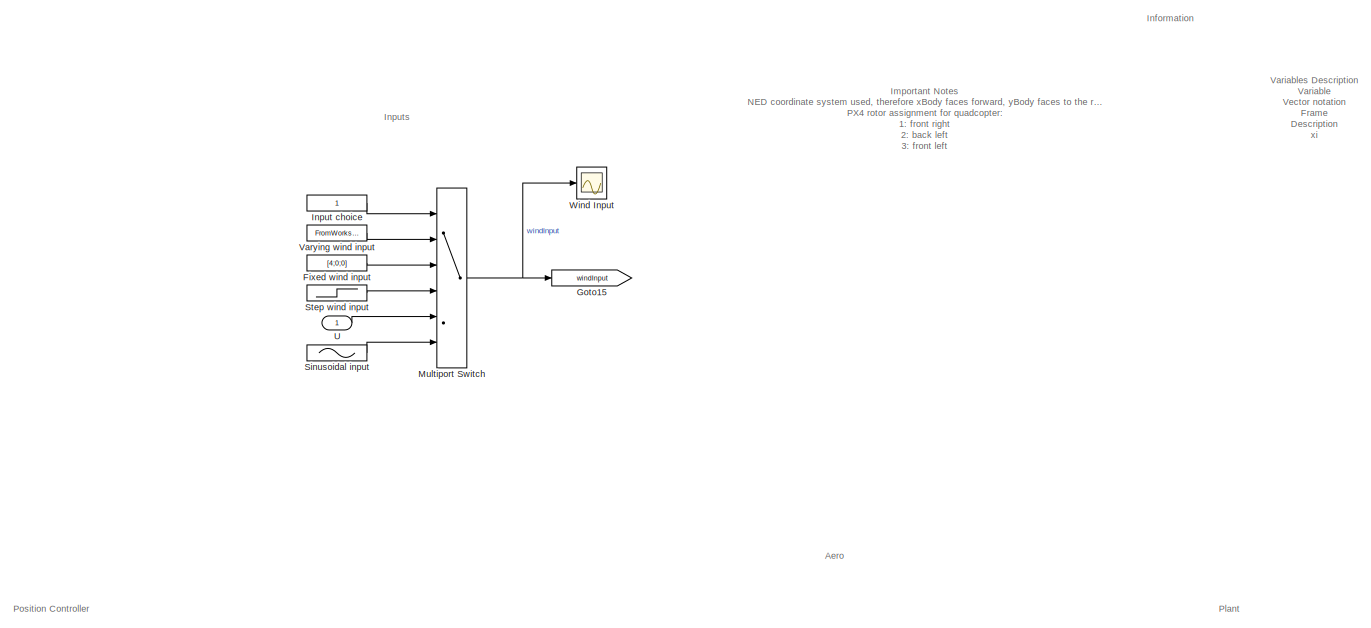
[diagram: root canvas - part 1/5, top center region]
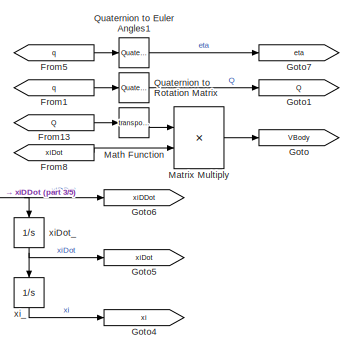
[diagram: root canvas - part 2/5, middle right region]
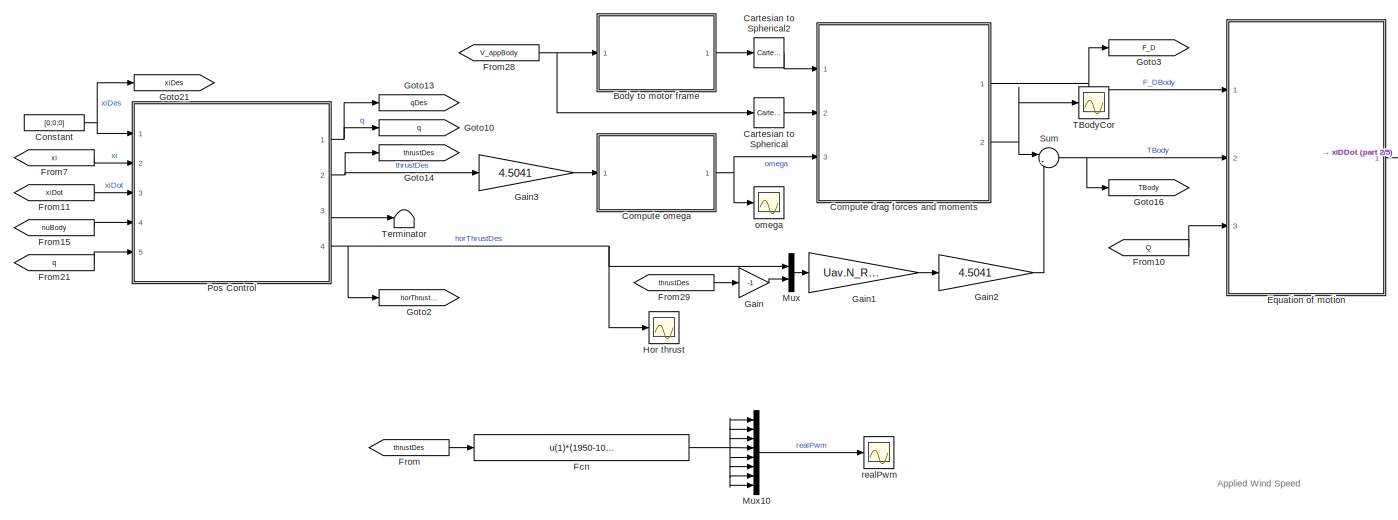
[diagram: root canvas - part 3/5, full width, middle band]
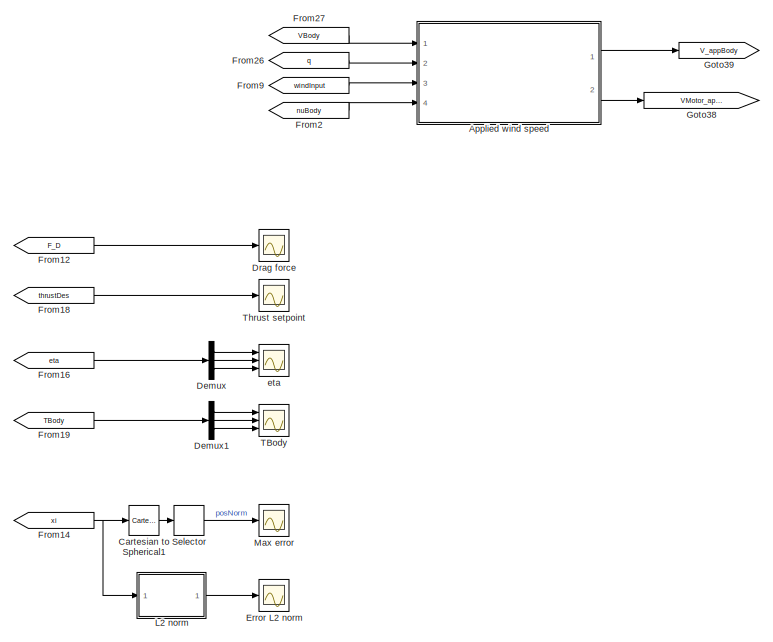
[diagram: root canvas - part 4/5, bottom right region]
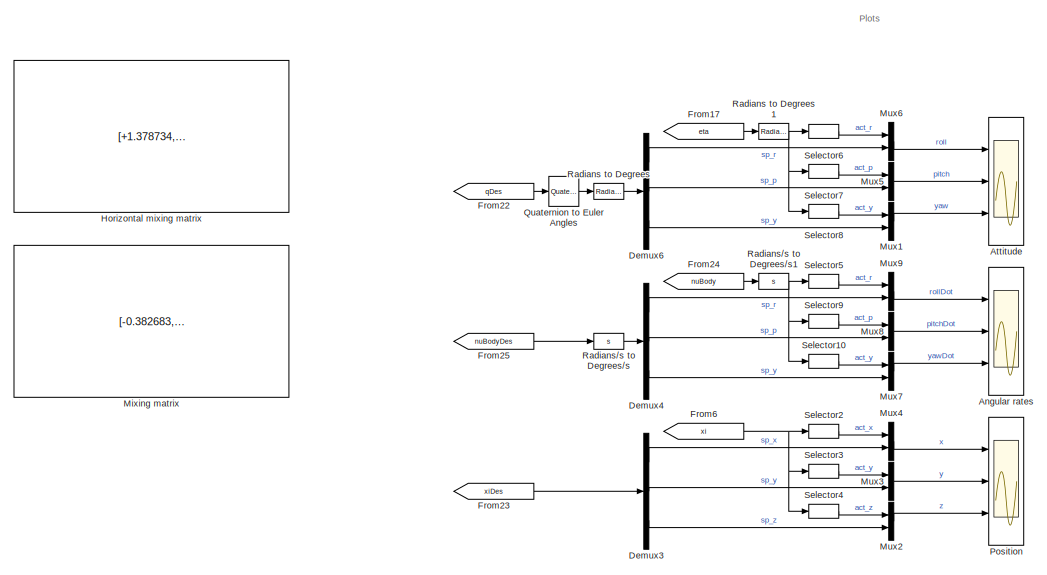
[diagram: root canvas - part 5/5, bottom left region]
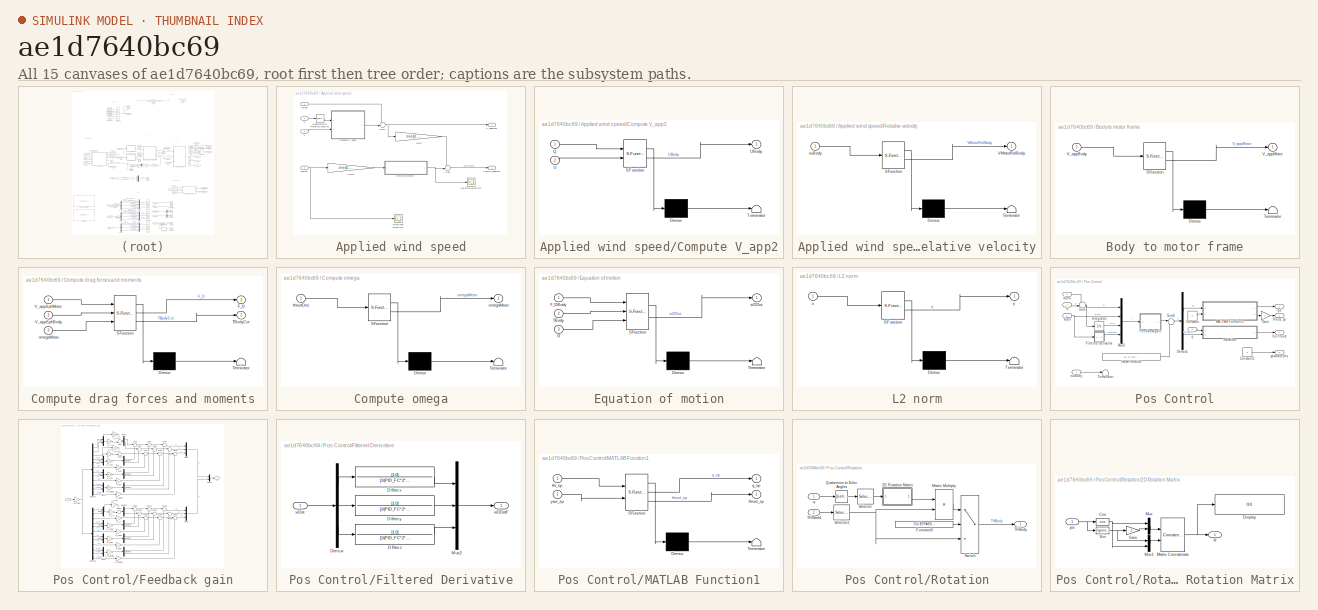
[diagram: thumbnail index - all 15 canvases of the model, root first then tree order]
MODEL slx_ae1d7640bc69
KIND model
CONFIG AbsTol = auto
CONFIG EnableMultiTasking = on
CONFIG FixedStep = auto
CONFIG MaxStep = Simulation.TS_MAX
CONFIG MinStep = auto
CONFIG PreLoadFcn = % InitializeParameters;
CONFIG RelTol = 1e-3
CONFIG SampleTimeConstraint = Unconstrained
CONFIG SolverName = VariableStepAuto
CONFIG StartTime = 0.0
CONFIG StopTime = Simulation.T_END
BLOCK [Scope] Angular rates
  Floating = off
  NumInputPorts = 3
  Ports = [3]
  ScopeSpecificationString = Simulink.scopes.TimeScopeBlockCfg('CurrentConfiguration', extmgr.ConfigurationSet(extmgr.Configuration('Core','General UI',true),extmgr.Configuration('Core','Source UI',true),extmgr.Configuration('Sources','WiredSimulink',true,'DataLoggingVariableName','ScopeData1'),extmgr.Configuration('Visuals','Time Domain',true,'SerializedDisplays',{struct('MinYLimReal','-4.01617','MaxYLimReal','7.15197','YLab...<+2840ch>
BLOCK [SubSystem] Applied wind speed
  Ports = [4, 2]
  RequestExecContextInheritance = off
BLOCK [SubSystem] Applied wind speed/Compute V_app2
  ErrorFcn = Stateflow.Translate.translate
  PermitHierarchicalResolution = ExplicitOnly
  Ports = [2, 1]
  RequestExecContextInheritance = off
  SFBlockType = MATLAB Function
  TreatAsAtomicUnit = on
BLOCK [Demux] Applied wind speed/Compute V_app2/ Demux 
  Outputs = 1
  Ports = [1, 1]
BLOCK [S-Function] Applied wind speed/Compute V_app2/ SFunction 
  EnableBusSupport = on
  FunctionName = sf_sfun
  PortCounts = [2 2]
  Ports = [2, 2]
  SFcnIsStateOwnerBlock = off
  SFunctionDeploymentMode = off
  Tag = Stateflow S-Function 5
BLOCK [Terminator] Applied wind speed/Compute V_app2/ Terminator 
BLOCK [Inport] Applied wind speed/Compute V_app2/Q
BLOCK [Inport] Applied wind speed/Compute V_app2/U
  Port = 2
BLOCK [Outport] Applied wind speed/Compute V_app2/UBody
  VectorParamsAs1DForOutWhenUnconnected = off
BLOCK [Gain] Applied wind speed/Gain
  Gain = ones(1,Uav.N_ROTORS)
  Multiplication = Matrix(u*K)
BLOCK [Gain] Applied wind speed/Gain1
  Gain = ones(1,Uav.N_ROTORS)
  Multiplication = Matrix(u*K)
BLOCK [Reference] Applied wind speed/Quaternion to Rotation Matrix1  REF=QuaternionLibrary/Quaternion
to Rotation Matrix
  Ports = [1, 1]
  SourceBlock = QuaternionLibrary/Quaternion\nto Rotation Matrix
BLOCK [Scope] Applied wind speed/Relative velocities
  Floating = off
  NumInputPorts = 1
  Ports = [1]
  ScopeSpecificationString = Simulink.scopes.TimeScopeBlockCfg('CurrentConfiguration', extmgr.ConfigurationSet(extmgr.Configuration('Core','General UI',true),extmgr.Configuration('Core','Source UI',true),extmgr.Configuration('Sources','WiredSimulink',true,'DataLoggingVariableName','ScopeData7'),extmgr.Configuration('Visuals','Time Domain',true,'SerializedDisplays',{struct('MinYLimReal','-0.10082','MaxYLimReal','0.10082','YLab...<+1971ch>
BLOCK [SubSystem] Applied wind speed/Relative velocity
  ErrorFcn = Stateflow.Translate.translate
  PermitHierarchicalResolution = ExplicitOnly
  Ports = [1, 1]
  RequestExecContextInheritance = off
  SFBlockType = MATLAB Function
  TreatAsAtomicUnit = on
BLOCK [Demux] Applied wind speed/Relative velocity/ Demux 
  Outputs = 1
  Ports = [1, 1]
BLOCK [S-Function] Applied wind speed/Relative velocity/ SFunction 
  EnableBusSupport = on
  FunctionName = sf_sfun
  Parameters = Uav
  PortCounts = [1 2]
  Ports = [1, 2]
  SFcnIsStateOwnerBlock = off
  SFunctionDeploymentMode = off
  Tag = Stateflow S-Function 4
BLOCK [Terminator] Applied wind speed/Relative velocity/ Terminator 
BLOCK [Outport] Applied wind speed/Relative velocity/VMotorRelBody
  VectorParamsAs1DForOutWhenUnconnected = off
BLOCK [Inport] Applied wind speed/Relative velocity/nuBody
BLOCK [Scope] Applied wind speed/Rotational velocities
  Floating = off
  NumInputPorts = 1
  Ports = [1]
  ScopeSpecificationString = Simulink.scopes.TimeScopeBlockCfg('CurrentConfiguration', extmgr.ConfigurationSet(extmgr.Configuration('Core','General UI',true),extmgr.Configuration('Core','Source UI',true),extmgr.Configuration('Sources','WiredSimulink',true,'DataLoggingVariableName','ScopeData8'),extmgr.Configuration('Visuals','Time Domain',true,'SerializedDisplays',{struct('MinYLimReal','-0.22625','MaxYLimReal','0.41313','YLab...<+1461ch>
BLOCK [Sum] Applied wind speed/Sum
  Inputs = ++|
  Ports = [2, 1]
BLOCK [Sum] Applied wind speed/Sum1
  Inputs = ++|
  Ports = [2, 1]
BLOCK [Inport] Applied wind speed/U
  Port = 3
  Unit = m/s
BLOCK [Inport] Applied wind speed/VBody
  Unit = m/s
BLOCK [Outport] Applied wind speed/VMotor_appBody
  Port = 2
  PortDimensions = [3,Uav.N_ROTORS]
  Unit = m/s
  VectorParamsAs1DForOutWhenUnconnected = off
BLOCK [Outport] Applied wind speed/V_appBody
  Unit = m/s
  VectorParamsAs1DForOutWhenUnconnected = off
BLOCK [Inport] Applied wind speed/nuBody
  Port = 4
  Unit = rad/s
BLOCK [Inport] Applied wind speed/q
  Port = 2
BLOCK [Scope] Attitude
  Floating = off
  NumInputPorts = 3
  Ports = [3]
  ScopeSpecificationString = Simulink.scopes.TimeScopeBlockCfg('CurrentConfiguration', extmgr.ConfigurationSet(extmgr.Configuration('Core','General UI',true),extmgr.Configuration('Core','Source UI',true),extmgr.Configuration('Sources','WiredSimulink',true,'DataLoggingVariableName','ScopeData2'),extmgr.Configuration('Visuals','Time Domain',true,'SerializedDisplays',{struct('MinYLimReal','-1.00000','MaxYLimReal','1.00000','YLab...<+3144ch>
BLOCK [SubSystem] Body to motor frame
  ErrorFcn = Stateflow.Translate.translate
  PermitHierarchicalResolution = ExplicitOnly
  Ports = [1, 1]
  RequestExecContextInheritance = off
  SFBlockType = MATLAB Function
  TreatAsAtomicUnit = on
BLOCK [Demux] Body to motor frame/ Demux 
  Outputs = 1
  Ports = [1, 1]
BLOCK [S-Function] Body to motor frame/ SFunction 
  EnableBusSupport = on
  FunctionName = sf_sfun
  Parameters = Uav
  PortCounts = [1 2]
  Ports = [1, 2]
  SFcnIsStateOwnerBlock = off
  SFunctionDeploymentMode = off
  Tag = Stateflow S-Function 1
BLOCK [Terminator] Body to motor frame/ Terminator 
BLOCK [Inport] Body to motor frame/V_appBody
BLOCK [Outport] Body to motor frame/V_appMotor
  VectorParamsAs1DForOutWhenUnconnected = off
BLOCK [Reference] Cartesian to Spherical  REF=QuaternionLibrary/Cartesian
to Spherical
  Ports = [1, 1]
  SourceBlock = QuaternionLibrary/Cartesian\nto Spherical
BLOCK [Reference] Cartesian to Spherical1  REF=QuaternionLibrary/Cartesian
to Spherical
  Ports = [1, 1]
  SourceBlock = QuaternionLibrary/Cartesian\nto Spherical
BLOCK [Reference] Cartesian to Spherical2  REF=QuaternionLibrary/Cartesian
to Spherical
  Ports = [1, 1]
  SourceBlock = QuaternionLibrary/Cartesian\nto Spherical
BLOCK [SubSystem] Compute drag forces and moments
  ErrorFcn = Stateflow.Translate.translate
  PermitHierarchicalResolution = ExplicitOnly
  Ports = [3, 2]
  RequestExecContextInheritance = off
  SFBlockType = MATLAB Function
  TreatAsAtomicUnit = on
BLOCK [Demux] Compute drag forces and moments/ Demux 
  Outputs = 1
  Ports = [1, 1]
BLOCK [S-Function] Compute drag forces and moments/ SFunction 
  EnableBusSupport = on
  FunctionName = sf_sfun
  Parameters = Aero,Uav
  PortCounts = [3 3]
  Ports = [3, 3]
  SFcnIsStateOwnerBlock = off
  SFunctionDeploymentMode = off
  Tag = Stateflow S-Function 9
BLOCK [Terminator] Compute drag forces and moments/ Terminator 
BLOCK [Outport] Compute drag forces and moments/F_D
  VectorParamsAs1DForOutWhenUnconnected = off
BLOCK [Outport] Compute drag forces and moments/TBodyCor
  Port = 2
  VectorParamsAs1DForOutWhenUnconnected = off
BLOCK [Inport] Compute drag forces and moments/V_appSphBody
  Port = 2
BLOCK [Inport] Compute drag forces and moments/V_appSphMotor
BLOCK [Inport] Compute drag forces and moments/omegaMean
  Port = 3
BLOCK [SubSystem] Compute omega
  ErrorFcn = Stateflow.Translate.translate
  PermitHierarchicalResolution = ExplicitOnly
  Ports = [1, 1]
  RequestExecContextInheritance = off
  SFBlockType = MATLAB Function
  TreatAsAtomicUnit = on
BLOCK [Demux] Compute omega/ Demux 
  Outputs = 1
  Ports = [1, 1]
BLOCK [S-Function] Compute omega/ SFunction 
  EnableBusSupport = on
  FunctionName = sf_sfun
  Parameters = Aero,Uav
  PortCounts = [1 2]
  Ports = [1, 2]
  SFcnIsStateOwnerBlock = off
  SFunctionDeploymentMode = off
  Tag = Stateflow S-Function 2
BLOCK [Terminator] Compute omega/ Terminator 
BLOCK [Outport] Compute omega/omegaMean
  VectorParamsAs1DForOutWhenUnconnected = off
BLOCK [Inport] Compute omega/thrustDes
BLOCK [Constant] Constant
  Value = [0;0;0]
BLOCK [Demux] Demux
  Outputs = 3
  Ports = [1, 3]
BLOCK [Demux] Demux1
  Outputs = 3
  Ports = [1, 3]
BLOCK [Demux] Demux3
  Outputs = 3
  Ports = [1, 3]
BLOCK [Demux] Demux4
  Outputs = 3
  Ports = [1, 3]
BLOCK [Demux] Demux6
  Outputs = 3
  Ports = [1, 3]
BLOCK [Scope] Drag force
  Floating = off
  NumInputPorts = 1
  Ports = [1]
  ScopeSpecificationString = Simulink.scopes.TimeScopeBlockCfg('CurrentConfiguration', extmgr.ConfigurationSet(extmgr.Configuration('Core','General UI',true),extmgr.Configuration('Core','Source UI',true),extmgr.Configuration('Sources','WiredSimulink',true,'DataLoggingVariableName','ScopeData3'),extmgr.Configuration('Visuals','Time Domain',true,'SerializedDisplays',{struct('MinYLimReal','-0.87753','MaxYLimReal','0.20159','YLab...<+1461ch>
BLOCK [SubSystem] Equation of motion
  ErrorFcn = Stateflow.Translate.translate
  PermitHierarchicalResolution = ExplicitOnly
  Ports = [3, 1]
  RequestExecContextInheritance = off
  SFBlockType = MATLAB Function
  TreatAsAtomicUnit = on
BLOCK [Demux] Equation of motion/ Demux 
  Outputs = 1
  Ports = [1, 1]
BLOCK [S-Function] Equation of motion/ SFunction 
  EnableBusSupport = on
  FunctionName = sf_sfun
  Parameters = Uav
  PortCounts = [3 2]
  Ports = [3, 2]
  SFcnIsStateOwnerBlock = off
  SFunctionDeploymentMode = off
  Tag = Stateflow S-Function 6
BLOCK [Terminator] Equation of motion/ Terminator 
BLOCK [Inport] Equation of motion/F_DBody
BLOCK [Inport] Equation of motion/R
  Port = 3
BLOCK [Inport] Equation of motion/TBody
  Port = 2
BLOCK [Outport] Equation of motion/xiDDot
  VectorParamsAs1DForOutWhenUnconnected = off
BLOCK [Scope] Error L2 norm
  Floating = off
  NumInputPorts = 1
  Ports = [1]
  ScopeSpecificationString = Simulink.scopes.TimeScopeBlockCfg('CurrentConfiguration', extmgr.ConfigurationSet(extmgr.Configuration('Core','General UI',true),extmgr.Configuration('Core','Source UI',true),extmgr.Configuration('Sources','WiredSimulink',true,'DataLoggingVariableName','ScopeData5'),extmgr.Configuration('Visuals','Time Domain',true,'SerializedDisplays',{struct('MinYLimReal','-0.03873','MaxYLimReal','0.34858','YLab...<+1449ch>
BLOCK [Fcn] Fcn
  Expr = u(1)*(1950-1075) + 1075
BLOCK [Constant] Fixed wind input
  Value = [4;0;0]
BLOCK [From] From
  GotoTag = thrustDes
BLOCK [From] From1
  GotoTag = q
BLOCK [From] From10
  GotoTag = Q
BLOCK [From] From11
  GotoTag = xiDot
BLOCK [From] From12
  GotoTag = F_D
BLOCK [From] From13
  GotoTag = Q
BLOCK [From] From14
  GotoTag = xi
BLOCK [From] From15
  GotoTag = nuBody
BLOCK [From] From16
  GotoTag = eta
BLOCK [From] From17
  GotoTag = eta
BLOCK [From] From18
  GotoTag = thrustDes
BLOCK [From] From19
  GotoTag = TBody
BLOCK [From] From2
  GotoTag = nuBody
BLOCK [From] From21
  GotoTag = q
BLOCK [From] From22
  GotoTag = qDes
BLOCK [From] From23
  GotoTag = xiDes
BLOCK [From] From24
  GotoTag = nuBody
BLOCK [From] From25
  GotoTag = nuBodyDes
BLOCK [From] From26
  GotoTag = q
BLOCK [From] From27
  GotoTag = VBody
BLOCK [From] From28
  GotoTag = V_appBody
BLOCK [From] From29
  GotoTag = thrustDes
BLOCK [From] From5
  GotoTag = q
BLOCK [From] From6
  GotoTag = xi
BLOCK [From] From7
  GotoTag = xi
BLOCK [From] From8
  GotoTag = xiDot
BLOCK [From] From9
  GotoTag = windInput
BLOCK [Gain] Gain
  Gain = -1
BLOCK [Gain] Gain1
  Gain = Uav.N_ROTORS
BLOCK [Gain] Gain2
  Gain = 4.5041
BLOCK [Gain] Gain3
  Gain = 4.5041
BLOCK [Goto] Goto
  GotoTag = VBody
BLOCK [Goto] Goto1
  GotoTag = Q
BLOCK [Goto] Goto10
  GotoTag = q
BLOCK [Goto] Goto13
  GotoTag = qDes
BLOCK [Goto] Goto14
  GotoTag = thrustDes
BLOCK [Goto] Goto15
  GotoTag = windInput
BLOCK [Goto] Goto16
  GotoTag = TBody
BLOCK [Goto] Goto2
  GotoTag = horThrustDes
BLOCK [Goto] Goto21
  GotoTag = xiDes
BLOCK [Goto] Goto3
  GotoTag = F_D
BLOCK [Goto] Goto38
  GotoTag = VMotor_appBody
BLOCK [Goto] Goto39
  GotoTag = V_appBody
BLOCK [Goto] Goto4
  GotoTag = xi
BLOCK [Goto] Goto5
  GotoTag = xiDot
BLOCK [Goto] Goto6
  GotoTag = xiDDot
BLOCK [Goto] Goto7
  GotoTag = eta
BLOCK [Scope] Hor thrust
  Floating = off
  NumInputPorts = 1
  Ports = [1]
  ScopeSpecificationString = Simulink.scopes.TimeScopeBlockCfg('CurrentConfiguration', extmgr.ConfigurationSet(extmgr.Configuration('Core','General UI',true),extmgr.Configuration('Core','Source UI',true),extmgr.Configuration('Sources','WiredSimulink',true,'DataLoggingVariableName','ScopeData1'),extmgr.Configuration('Visuals','Time Domain',true,'SerializedDisplays',{struct('MinYLimReal','-1.00000','MaxYLimReal','1.00000','YLab...<+1464ch>
BLOCK [Constant] Horizontal mixing matrix
  Commented = on
  Value = [+1.378734, -3.328559;\n -1.378734, +3.328559;\n -3.328559, +1.378734;\n -1.378734, -3.328559;\n +1.378734, +3.328559;\n +3.328559, -1.378734;\n -3.328559, -1.378734;\n +3.328559, +1.378734]
BLOCK [Constant] Input choice
BLOCK [SubSystem] L2 norm
  ErrorFcn = Stateflow.Translate.translate
  PermitHierarchicalResolution = ExplicitOnly
  Ports = [1, 1]
  RequestExecContextInheritance = off
  SFBlockType = MATLAB Function
  TreatAsAtomicUnit = on
BLOCK [Demux] L2 norm/ Demux 
  Outputs = 1
  Ports = [1, 1]
BLOCK [S-Function] L2 norm/ SFunction 
  EnableBusSupport = on
  FunctionName = sf_sfun
  PortCounts = [1 2]
  Ports = [1, 2]
  SFcnIsStateOwnerBlock = off
  SFunctionDeploymentMode = off
  Tag = Stateflow S-Function 15
BLOCK [Terminator] L2 norm/ Terminator 
BLOCK [Inport] L2 norm/u
BLOCK [Outport] L2 norm/y
  VectorParamsAs1DForOutWhenUnconnected = off
BLOCK [Math] Math Function
  Operator = transpose
  Ports = [1, 1]
  SignedPower = on
BLOCK [Product] Matrix Multiply
  Multiplication = Matrix(*)
  Ports = [2, 1]
BLOCK [Scope] Max error
  Floating = off
  NumInputPorts = 1
  Ports = [1]
  ScopeSpecificationString = Simulink.scopes.TimeScopeBlockCfg('CurrentConfiguration', extmgr.ConfigurationSet(extmgr.Configuration('Core','General UI',true),extmgr.Configuration('Core','Source UI',true),extmgr.Configuration('Sources','WiredSimulink',true,'DataLoggingVariableName','ScopeData4'),extmgr.Configuration('Visuals','Time Domain',true,'SerializedDisplays',{struct('MinYLimReal','-0.000001','MaxYLimReal','0.000011','YL...<+1447ch>
BLOCK [Constant] Mixing matrix
  Commented = on
  Value = [-0.382683,  0.923880,  1.000000,  1.000000 ;\n  0.382683, -0.923880,  1.000000,  1.000000 ;\n -0.923880,  0.382683, -1.000000,  1.000000 ;\n -0.382683, -0.923880, -1.000000,  1.000000 ;\n  0.382683,  0.923880, -1.000000,  1.000000 ;\n  0.923880, -0.382683, -1.000000,  1.000000 ;\n  0.923880,  0.382683,  1.000000,  1.000000 ;\n -0.923880, -0.382683,  1.000000,  1.000000 ]
BLOCK [MultiPortSwitch] Multiport Switch
  InputSameDT = off
  Inputs = 5
  Ports = [6, 1]
  SaturateOnIntegerOverflow = off
BLOCK [Mux] Mux
  DisplayOption = bar
  Inputs = 2
  Ports = [2, 1]
BLOCK [Mux] Mux1
  DisplayOption = bar
  Inputs = 2
  Ports = [2, 1]
BLOCK [Mux] Mux10
  DisplayOption = bar
  Inputs = 8
  Ports = [8, 1]
BLOCK [Mux] Mux2
  DisplayOption = bar
  Inputs = 2
  Ports = [2, 1]
BLOCK [Mux] Mux3
  DisplayOption = bar
  Inputs = 2
  Ports = [2, 1]
BLOCK [Mux] Mux4
  DisplayOption = bar
  Inputs = 2
  Ports = [2, 1]
BLOCK [Mux] Mux5
  DisplayOption = bar
  Inputs = 2
  Ports = [2, 1]
BLOCK [Mux] Mux6
  DisplayOption = bar
  Inputs = 2
  Ports = [2, 1]
BLOCK [Mux] Mux7
  DisplayOption = bar
  Inputs = 2
  Ports = [2, 1]
BLOCK [Mux] Mux8
  DisplayOption = bar
  Inputs = 2
  Ports = [2, 1]
BLOCK [Mux] Mux9
  DisplayOption = bar
  Inputs = 2
  Ports = [2, 1]
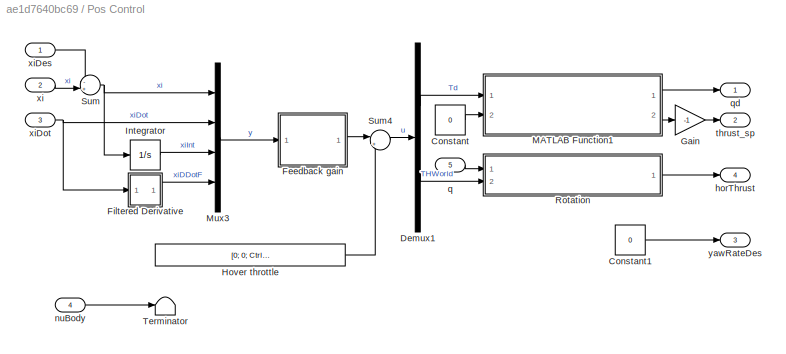
BLOCK [SubSystem] Pos Control
  Ports = [5, 4]
  RequestExecContextInheritance = off
BLOCK [Constant] Pos Control/Constant
  Value = 0
BLOCK [Constant] Pos Control/Constant1
  Value = 0
BLOCK [Demux] Pos Control/Demux1
  Outputs = 2
  Ports = [1, 2]
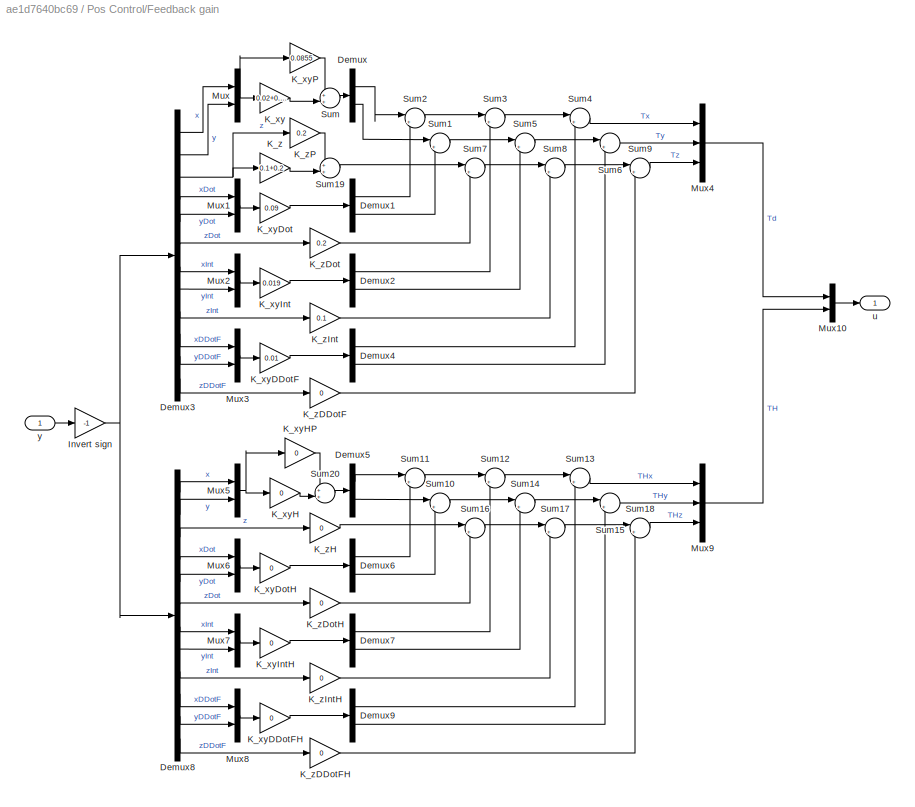
BLOCK [SubSystem] Pos Control/Feedback gain
  Ports = [1, 1]
  RequestExecContextInheritance = off
BLOCK [Demux] Pos Control/Feedback gain/Demux
  Outputs = 2
  Ports = [1, 2]
BLOCK [Demux] Pos Control/Feedback gain/Demux1
  Outputs = 2
  Ports = [1, 2]
BLOCK [Demux] Pos Control/Feedback gain/Demux2
  Outputs = 2
  Ports = [1, 2]
BLOCK [Demux] Pos Control/Feedback gain/Demux3
  Outputs = 12
  Ports = [1, 12]
BLOCK [Demux] Pos Control/Feedback gain/Demux4
  Outputs = 2
  Ports = [1, 2]
BLOCK [Demux] Pos Control/Feedback gain/Demux5
  Outputs = 2
  Ports = [1, 2]
BLOCK [Demux] Pos Control/Feedback gain/Demux6
  Outputs = 2
  Ports = [1, 2]
BLOCK [Demux] Pos Control/Feedback gain/Demux7
  Outputs = 2
  Ports = [1, 2]
BLOCK [Demux] Pos Control/Feedback gain/Demux8
  Outputs = 12
  Ports = [1, 12]
BLOCK [Demux] Pos Control/Feedback gain/Demux9
  Outputs = 2
  Ports = [1, 2]
BLOCK [Gain] Pos Control/Feedback gain/Invert sign
  Gain = -1
BLOCK [Gain] Pos Control/Feedback gain/K_xy
  Gain = 0.02+0.0855
BLOCK [Gain] Pos Control/Feedback gain/K_xyDDotF
  Gain = 0.01
BLOCK [Gain] Pos Control/Feedback gain/K_xyDDotFH
  Gain = 0
BLOCK [Gain] Pos Control/Feedback gain/K_xyDot
  Gain = 0.09
BLOCK [Gain] Pos Control/Feedback gain/K_xyDotH
  Gain = 0
BLOCK [Gain] Pos Control/Feedback gain/K_xyH
  Gain = 0
BLOCK [Gain] Pos Control/Feedback gain/K_xyHP
  Commented = on
  Gain = 0
BLOCK [Gain] Pos Control/Feedback gain/K_xyInt
  Gain = 0.019
BLOCK [Gain] Pos Control/Feedback gain/K_xyIntH
  Gain = 0
BLOCK [Gain] Pos Control/Feedback gain/K_xyP
  Commented = on
  Gain = 0.0855
BLOCK [Gain] Pos Control/Feedback gain/K_z
  Gain = 0.1+0.2
BLOCK [Gain] Pos Control/Feedback gain/K_zDDotF
  Gain = 0
BLOCK [Gain] Pos Control/Feedback gain/K_zDDotFH
  Commented = on
  Gain = 0
BLOCK [Gain] Pos Control/Feedback gain/K_zDot
  Gain = 0.2
BLOCK [Gain] Pos Control/Feedback gain/K_zDotH
  Commented = on
  Gain = 0
BLOCK [Gain] Pos Control/Feedback gain/K_zH
  Commented = on
  Gain = 0
BLOCK [Gain] Pos Control/Feedback gain/K_zInt
  Gain = 0.1
BLOCK [Gain] Pos Control/Feedback gain/K_zIntH
  Commented = on
  Gain = 0
BLOCK [Gain] Pos Control/Feedback gain/K_zP
  Commented = on
  Gain = 0.2
BLOCK [Mux] Pos Control/Feedback gain/Mux
  DisplayOption = bar
  Inputs = 2
  Ports = [2, 1]
BLOCK [Mux] Pos Control/Feedback gain/Mux1
  DisplayOption = bar
  Inputs = 2
  Ports = [2, 1]
BLOCK [Mux] Pos Control/Feedback gain/Mux10
  DisplayOption = bar
  Inputs = 2
  Ports = [2, 1]
BLOCK [Mux] Pos Control/Feedback gain/Mux2
  DisplayOption = bar
  Inputs = 2
  Ports = [2, 1]
BLOCK [Mux] Pos Control/Feedback gain/Mux3
  DisplayOption = bar
  Inputs = 2
  Ports = [2, 1]
BLOCK [Mux] Pos Control/Feedback gain/Mux4
  DisplayOption = bar
  Inputs = 3
  Ports = [3, 1]
BLOCK [Mux] Pos Control/Feedback gain/Mux5
  DisplayOption = bar
  Inputs = 2
  Ports = [2, 1]
BLOCK [Mux] Pos Control/Feedback gain/Mux6
  DisplayOption = bar
  Inputs = 2
  Ports = [2, 1]
BLOCK [Mux] Pos Control/Feedback gain/Mux7
  DisplayOption = bar
  Inputs = 2
  Ports = [2, 1]
BLOCK [Mux] Pos Control/Feedback gain/Mux8
  DisplayOption = bar
  Inputs = 2
  Ports = [2, 1]
BLOCK [Mux] Pos Control/Feedback gain/Mux9
  DisplayOption = bar
  Inputs = 3
  Ports = [3, 1]
BLOCK [Sum] Pos Control/Feedback gain/Sum
  Inputs = ++|
  Ports = [2, 1]
BLOCK [Sum] Pos Control/Feedback gain/Sum1
  Inputs = |++
  Ports = [2, 1]
BLOCK [Sum] Pos Control/Feedback gain/Sum10
  Inputs = |++
  Ports = [2, 1]
BLOCK [Sum] Pos Control/Feedback gain/Sum11
  Inputs = |++
  Ports = [2, 1]
BLOCK [Sum] Pos Control/Feedback gain/Sum12
  Inputs = |++
  Ports = [2, 1]
BLOCK [Sum] Pos Control/Feedback gain/Sum13
  Inputs = |++
  Ports = [2, 1]
BLOCK [Sum] Pos Control/Feedback gain/Sum14
  Inputs = |++
  Ports = [2, 1]
BLOCK [Sum] Pos Control/Feedback gain/Sum15
  Inputs = |++
  Ports = [2, 1]
BLOCK [Sum] Pos Control/Feedback gain/Sum16
  Inputs = |++
  Ports = [2, 1]
BLOCK [Sum] Pos Control/Feedback gain/Sum17
  Inputs = |++
  Ports = [2, 1]
BLOCK [Sum] Pos Control/Feedback gain/Sum18
  Inputs = |++
  Ports = [2, 1]
BLOCK [Sum] Pos Control/Feedback gain/Sum19
  Inputs = ++|
  Ports = [2, 1]
BLOCK [Sum] Pos Control/Feedback gain/Sum2
  Inputs = |++
  Ports = [2, 1]
BLOCK [Sum] Pos Control/Feedback gain/Sum20
  Inputs = ++|
  Ports = [2, 1]
BLOCK [Sum] Pos Control/Feedback gain/Sum3
  Inputs = |++
  Ports = [2, 1]
BLOCK [Sum] Pos Control/Feedback gain/Sum4
  Inputs = |++
  Ports = [2, 1]
BLOCK [Sum] Pos Control/Feedback gain/Sum5
  Inputs = |++
  Ports = [2, 1]
BLOCK [Sum] Pos Control/Feedback gain/Sum6
  Inputs = |++
  Ports = [2, 1]
BLOCK [Sum] Pos Control/Feedback gain/Sum7
  Inputs = |++
  Ports = [2, 1]
BLOCK [Sum] Pos Control/Feedback gain/Sum8
  Inputs = |++
  Ports = [2, 1]
BLOCK [Sum] Pos Control/Feedback gain/Sum9
  Inputs = |++
  Ports = [2, 1]
BLOCK [Outport] Pos Control/Feedback gain/u
  VectorParamsAs1DForOutWhenUnconnected = off
BLOCK [Inport] Pos Control/Feedback gain/y
BLOCK [SubSystem] Pos Control/Filtered Derivative
  Ports = [1, 1]
  RequestExecContextInheritance = off
BLOCK [TransferFcn] Pos Control/Filtered Derivative/D filter x
  ContinuousStateAttributes = 'velPID_D_x'
  Denominator = [1/(PID_FC*2*pi) 1]
  Numerator = [1 0]
BLOCK [TransferFcn] Pos Control/Filtered Derivative/D filter y
  ContinuousStateAttributes = 'velPID_D_y'
  Denominator = [1/(PID_FC*2*pi) 1]
  Numerator = [1 0]
BLOCK [TransferFcn] Pos Control/Filtered Derivative/D filter z
  ContinuousStateAttributes = 'velPID_D_z'
  Denominator = [1/(PID_FC*2*pi) 1]
  Numerator = [1 0]
BLOCK [Demux] Pos Control/Filtered Derivative/Demux
  Outputs = 3
  Ports = [1, 3]
BLOCK [Mux] Pos Control/Filtered Derivative/Mux2
  DisplayOption = bar
  Inputs = 3
  Ports = [3, 1]
BLOCK [Outport] Pos Control/Filtered Derivative/xiDDotF
  Unit = m/s^2
  VectorParamsAs1DForOutWhenUnconnected = off
BLOCK [Inport] Pos Control/Filtered Derivative/xiDot
  Unit = m/s
BLOCK [Gain] Pos Control/Gain
  Gain = -1
BLOCK [Constant] Pos Control/Hover throttle
  Value = [0; 0; Ctrl.THROTTLE_HOVER; 0; 0; 0]
BLOCK [Integrator] Pos Control/Integrator
  ContinuousStateAttributes = 'xiInt'
  Ports = [1, 1]
BLOCK [SubSystem] Pos Control/MATLAB Function1
  ErrorFcn = Stateflow.Translate.translate
  PermitHierarchicalResolution = ExplicitOnly
  Ports = [2, 2]
  RequestExecContextInheritance = off
  SFBlockType = MATLAB Function
  TreatAsAtomicUnit = on
BLOCK [Demux] Pos Control/MATLAB Function1/ Demux 
  Outputs = 1
  Ports = [1, 1]
BLOCK [S-Function] Pos Control/MATLAB Function1/ SFunction 
  EnableBusSupport = on
  FunctionName = sf_sfun
  PortCounts = [2 3]
  Ports = [2, 3]
  SFcnIsStateOwnerBlock = off
  SFunctionDeploymentMode = off
  Tag = Stateflow S-Function 3
BLOCK [Terminator] Pos Control/MATLAB Function1/ Terminator 
BLOCK [Outport] Pos Control/MATLAB Function1/q_sp
  VectorParamsAs1DForOutWhenUnconnected = off
BLOCK [Inport] Pos Control/MATLAB Function1/thr_sp
BLOCK [Outport] Pos Control/MATLAB Function1/thrust_sp
  Port = 2
  VectorParamsAs1DForOutWhenUnconnected = off
BLOCK [Inport] Pos Control/MATLAB Function1/yaw_sp
  Port = 2
BLOCK [Mux] Pos Control/Mux3
  DisplayOption = bar
  Ports = [4, 1]
BLOCK [SubSystem] Pos Control/Rotation
  Ports = [2, 1]
  RequestExecContextInheritance = off
BLOCK [SubSystem] Pos Control/Rotation/2D Rotation Matrix
  Ports = [1, 1]
  RequestExecContextInheritance = off
BLOCK [Trigonometry] Pos Control/Rotation/2D Rotation Matrix/Cos
  Operator = cos
  Ports = [1, 1]
BLOCK [Display] Pos Control/Rotation/2D Rotation Matrix/Display
  Decimation = 1
  Ports = [1]
BLOCK [Gain] Pos Control/Rotation/2D Rotation Matrix/Gain
  Gain = -1
BLOCK [Concatenate] Pos Control/Rotation/2D Rotation Matrix/Matrix Concatenate
  ConcatenateDimension = 2
  Mode = Multidimensional array
  Ports = [2, 1]
BLOCK [Mux] Pos Control/Rotation/2D Rotation Matrix/Mux
  DisplayOption = bar
  Inputs = 2
  Ports = [2, 1]
BLOCK [Mux] Pos Control/Rotation/2D Rotation Matrix/Mux1
  DisplayOption = bar
  Inputs = 2
  Ports = [2, 1]
BLOCK [Outport] Pos Control/Rotation/2D Rotation Matrix/R
  VectorParamsAs1DForOutWhenUnconnected = off
BLOCK [Trigonometry] Pos Control/Rotation/2D Rotation Matrix/Sin
  Ports = [1, 1]
BLOCK [Inport] Pos Control/Rotation/2D Rotation Matrix/psi
BLOCK [Constant] Pos Control/Rotation/Constant3
  Value = Ctrl.BYPASS_ROTATION
BLOCK [Product] Pos Control/Rotation/Matrix Multiply
  Multiplication = Matrix(*)
  Ports = [2, 1]
BLOCK [Reference] Pos Control/Rotation/Quaternion to Euler Angles  REF=QuaternionLibrary/Quaternion
to Euler Angles
  Ports = [1, 1]
  SourceBlock = QuaternionLibrary/Quaternion\nto Euler Angles
BLOCK [Selector] Pos Control/Rotation/Selector
  IndexOptions = Index vector (dialog)
  Indices = 3
  InputPortWidth = 3
  OutputSizes = 1
  Ports = [1, 1]
BLOCK [Selector] Pos Control/Rotation/Selector1
  IndexOptions = Index vector (dialog)
  Indices = [1 2]
  InputPortWidth = 3
  OutputSizes = 1
  Ports = [1, 1]
BLOCK [Switch] Pos Control/Rotation/Switch
  Criteria = u2 ~= 0
  InputSameDT = off
  SaturateOnIntegerOverflow = off
BLOCK [Outport] Pos Control/Rotation/THBody
  VectorParamsAs1DForOutWhenUnconnected = off
BLOCK [Inport] Pos Control/Rotation/THWorld
  Port = 2
BLOCK [Inport] Pos Control/Rotation/q
BLOCK [Sum] Pos Control/Sum
  Inputs = -+|
  Ports = [2, 1]
BLOCK [Sum] Pos Control/Sum4
  Inputs = |+-
  Ports = [2, 1]
BLOCK [Terminator] Pos Control/Terminator
BLOCK [Outport] Pos Control/horThrust
  Port = 4
  PortDimensions = 2
  VectorParamsAs1DForOutWhenUnconnected = off
BLOCK [Inport] Pos Control/nuBody
  Port = 4
  Unit = rad/s
BLOCK [Inport] Pos Control/q
  NameLocation = top
  Port = 5
BLOCK [Outport] Pos Control/qd
  VectorParamsAs1DForOutWhenUnconnected = off
BLOCK [Outport] Pos Control/thrust_sp
  Port = 2
  VectorParamsAs1DForOutWhenUnconnected = off
BLOCK [Inport] Pos Control/xi
  Port = 2
  PortDimensions = 3
  Unit = m
BLOCK [Inport] Pos Control/xiDes
  PortDimensions = 3
  Unit = m
BLOCK [Inport] Pos Control/xiDot
  Port = 3
  PortDimensions = 3
  Unit = m/s
BLOCK [Outport] Pos Control/yawRateDes
  Port = 3
  Unit = rad/s
  VectorParamsAs1DForOutWhenUnconnected = off
BLOCK [Scope] Position
  Floating = off
  NumInputPorts = 3
  Ports = [3]
  ScopeSpecificationString = Simulink.scopes.TimeScopeBlockCfg('CurrentConfiguration', extmgr.ConfigurationSet(extmgr.Configuration('Core','General UI',true),extmgr.Configuration('Core','Source UI',true),extmgr.Configuration('Sources','WiredSimulink',true,'DataLoggingVariableName','ScopeData6'),extmgr.Configuration('Visuals','Time Domain',true,'SerializedDisplays',{struct('MinYLimReal','-0.03595','MaxYLimReal','0.32355','YLab...<+2827ch>
BLOCK [Reference] Quaternion to Euler Angles  REF=QuaternionLibrary/Quaternion
to Euler Angles
  Ports = [1, 1]
  SourceBlock = QuaternionLibrary/Quaternion\nto Euler Angles
BLOCK [Reference] Quaternion to Euler Angles1  REF=QuaternionLibrary/Quaternion
to Euler Angles
  Ports = [1, 1]
  SourceBlock = QuaternionLibrary/Quaternion\nto Euler Angles
BLOCK [Reference] Quaternion to Rotation Matrix  REF=QuaternionLibrary/Quaternion
to Rotation Matrix
  Ports = [1, 1]
  SourceBlock = QuaternionLibrary/Quaternion\nto Rotation Matrix
BLOCK [Reference] Radians to Degrees   REF=QuaternionLibrary/Radians
to Degrees 
  Ports = [1, 1]
  SourceBlock = QuaternionLibrary/Radians\nto Degrees
BLOCK [Reference] Radians to Degrees 1  REF=QuaternionLibrary/Radians
to Degrees 
  Ports = [1, 1]
  SourceBlock = QuaternionLibrary/Radians\nto Degrees
BLOCK [Reference] Radians//s to Degrees//s  REF=QuaternionLibrary/Radians//s
to Degrees//s
  Ports = [1, 1]
  SourceBlock = QuaternionLibrary/Radians//s\nto Degrees//s
BLOCK [Reference] Radians//s to Degrees//s1  REF=QuaternionLibrary/Radians//s
to Degrees//s
  Ports = [1, 1]
  SourceBlock = QuaternionLibrary/Radians//s\nto Degrees//s
BLOCK [Selector] Selector
  IndexOptions = Index vector (dialog)
  Indices = 3
  InputPortWidth = 3
  OutputSizes = 1
  Ports = [1, 1]
BLOCK [Selector] Selector10
  IndexOptions = Index vector (dialog)
  Indices = 3
  InputPortWidth = 3
  OutputSizes = 1
  Ports = [1, 1]
BLOCK [Selector] Selector2
  IndexOptions = Index vector (dialog)
  Indices = 1
  InputPortWidth = 3
  OutputSizes = 1
  Ports = [1, 1]
BLOCK [Selector] Selector3
  IndexOptions = Index vector (dialog)
  Indices = 2
  InputPortWidth = 3
  OutputSizes = 1
  Ports = [1, 1]
BLOCK [Selector] Selector4
  IndexOptions = Index vector (dialog)
  Indices = 3
  InputPortWidth = 3
  OutputSizes = 1
  Ports = [1, 1]
BLOCK [Selector] Selector5
  IndexOptions = Index vector (dialog)
  Indices = 1
  InputPortWidth = 3
  OutputSizes = 1
  Ports = [1, 1]
BLOCK [Selector] Selector6
  IndexOptions = Index vector (dialog)
  Indices = 1
  InputPortWidth = 3
  OutputSizes = 1
  Ports = [1, 1]
BLOCK [Selector] Selector7
  IndexOptions = Index vector (dialog)
  Indices = 2
  InputPortWidth = 3
  OutputSizes = 1
  Ports = [1, 1]
BLOCK [Selector] Selector8
  IndexOptions = Index vector (dialog)
  Indices = 3
  InputPortWidth = 3
  OutputSizes = 1
  Ports = [1, 1]
BLOCK [Selector] Selector9
  IndexOptions = Index vector (dialog)
  Indices = 2
  InputPortWidth = 3
  OutputSizes = 1
  Ports = [1, 1]
BLOCK [Sin] Sinusoidal input
  Amplitude = Wind.Ampl
  Bias = Wind.Bias
  Commented = on
  Frequency = Wind.Freq
  Ports = [0, 1]
  SampleTime = 0
BLOCK [Step] Step wind input
  After = Wind.StepFinal
  Before = Wind.StepInit
  Commented = on
  SampleTime = 0
  Time = Wind.StepTime
BLOCK [Sum] Sum
  Inputs = |++
  Ports = [2, 1]
BLOCK [Scope] TBody
  Floating = off
  NumInputPorts = 3
  Ports = [3]
  ScopeSpecificationString = Simulink.scopes.TimeScopeBlockCfg('CurrentConfiguration', extmgr.ConfigurationSet(extmgr.Configuration('Core','General UI',true),extmgr.Configuration('Core','Source UI',true),extmgr.Configuration('Sources','WiredSimulink',true,'DataLoggingVariableName','ScopeData7'),extmgr.Configuration('Visuals','Time Domain',true,'SerializedDisplays',{struct('MinYLimReal','-0.27662','MaxYLimReal','-0.26735','YLa...<+2749ch>
BLOCK [Scope] TBodyCor
  Floating = off
  NumInputPorts = 1
  Ports = [1]
  ScopeSpecificationString = Simulink.scopes.TimeScopeBlockCfg('CurrentConfiguration', extmgr.ConfigurationSet(extmgr.Configuration('Core','General UI',true),extmgr.Configuration('Core','Source UI',true),extmgr.Configuration('Sources','WiredSimulink',true,'DataLoggingVariableName','ScopeData3'),extmgr.Configuration('Visuals','Time Domain',true,'SerializedDisplays',{struct('MinYLimReal','-0.07568','MaxYLimReal','0.03','YLabelR...<+1558ch>
BLOCK [Terminator] Terminator
BLOCK [Scope] Thrust setpoint
  Floating = off
  NumInputPorts = 1
  Ports = [1]
  ScopeSpecificationString = Simulink.scopes.TimeScopeBlockCfg('CurrentConfiguration', extmgr.ConfigurationSet(extmgr.Configuration('Core','General UI',true),extmgr.Configuration('Core','Source UI',true),extmgr.Configuration('Sources','WiredSimulink',true,'DataLoggingVariableName','ScopeData8'),extmgr.Configuration('Visuals','Time Domain',true,'SerializedDisplays',{struct('MinYLimReal','-3.17681','MaxYLimReal','34.03722','YLa...<+1448ch>
BLOCK [Inport] U
  PortDimensions = 3
BLOCK [FromWorkspace] Varying wind input
  VariableName = windInput
BLOCK [Scope] Wind Input
  Floating = off
  NumInputPorts = 1
  Ports = [1]
  ScopeSpecificationString = Simulink.scopes.TimeScopeBlockCfg('CurrentConfiguration', extmgr.ConfigurationSet(extmgr.Configuration('Core','General UI',true),extmgr.Configuration('Core','Source UI',true),extmgr.Configuration('Sources','WiredSimulink',true,'DataLoggingVariableName','ScopeData1'),extmgr.Configuration('Visuals','Time Domain',true,'SerializedDisplays',{struct('MinYLimReal','-0.875','MaxYLimReal','7.875','YLabelRe...<+1459ch>
BLOCK [Scope] eta
  Floating = off
  NumInputPorts = 3
  Ports = [3]
  ScopeSpecificationString = Simulink.scopes.TimeScopeBlockCfg('CurrentConfiguration', extmgr.ConfigurationSet(extmgr.Configuration('Core','General UI',true),extmgr.Configuration('Core','Source UI',true),extmgr.Configuration('Sources','WiredSimulink',true,'DataLoggingVariableName','ScopeData9'),extmgr.Configuration('Visuals','Time Domain',true,'SerializedDisplays',{struct('MinYLimReal','-1.00000','MaxYLimReal','1.00000','YLab...<+2743ch>
BLOCK [Scope] omega
  Floating = off
  NumInputPorts = 1
  Ports = [1]
  ScopeSpecificationString = Simulink.scopes.TimeScopeBlockCfg('CurrentConfiguration', extmgr.ConfigurationSet(extmgr.Configuration('Core','General UI',true),extmgr.Configuration('Core','Source UI',true),extmgr.Configuration('Sources','WiredSimulink',true,'DataLoggingVariableName','ScopeData1'),extmgr.Configuration('Visuals','Time Domain',true,'SerializedDisplays',{struct('MinYLimReal','349.73807','MaxYLimReal','2349.73807','...<+1726ch>
BLOCK [Scope] realPwm
  Floating = off
  NumInputPorts = 1
  Ports = [1]
  ScopeSpecificationString = Simulink.scopes.TimeScopeBlockCfg('CurrentConfiguration', extmgr.ConfigurationSet(extmgr.Configuration('Core','General UI',true),extmgr.Configuration('Core','Source UI',true),extmgr.Configuration('Sources','WiredSimulink',true,'DataLoggingVariableName','ScopeData1'),extmgr.Configuration('Visuals','Time Domain',true,'SerializedDisplays',{struct('MinYLimReal','1551.51499','MaxYLimReal','1551.52191',...<+1852ch>
BLOCK [Integrator] xiDot_
  ContinuousStateAttributes = 'xiDot'
  InitialCondition = Initial.XI_DOT
  NameLocation = left
  Ports = [1, 1]
BLOCK [Integrator] xi_
  ContinuousStateAttributes = 'xi'
  InitialCondition = Initial.XI
  NameLocation = left
  Ports = [1, 1]
ANNOTATION (root): Important Notes NED coordinate system used, therefore xBody faces forward, yBody faces to the right and zBody faces down. PX4 rotor assignment for quadcopter: 1: front right 2: back left 3: front left 4: back right Airframe reference available at: https://dev.px4.io/en/airframes/airframe_reference.html
ANNOTATION (root): Variables Description Variable Vector notation Frame Description xi [x y z] World Position eta [phi theta psi] World Roll pitch yaw orientation nuBody [p q r] Body Angular velocity q [qW qAx1 qAx2 qAx3] World Quaternion orientation Uav.GAMMA [gamma1 ... gammaN] Body Angle to motor (CCW around body z-axis) Uav.ZETA zeta Body Rotor cant angle
ANNOTATION (root): Inputs
ANNOTATION (root): Position Controller
ANNOTATION (root): Information
ANNOTATION (root): Plots
ANNOTATION (root): Aero
ANNOTATION (root): Applied Wind Speed
ANNOTATION (root): Plant
LINE Applied wind speed/Compute V_app2:1 -> Applied wind speed/Sum1:2
LINE Applied wind speed/Gain1:1 -> Applied wind speed/Relative velocity:1
LINE Applied wind speed/Gain:1 -> Applied wind speed/Sum:1
LINE Applied wind speed/Quaternion to Rotation Matrix1:1 -> Applied wind speed/Compute V_app2:1
NET Applied wind speed/Relative velocity:1 -> Applied wind speed/Relative velocities:1, Applied wind speed/Sum:2
NET Applied wind speed/Sum1:1 -> Applied wind speed/Gain:1, Applied wind speed/V_appBody:1
LINE Applied wind speed/Sum:1 -> Applied wind speed/VMotor_appBody:1
LINE Applied wind speed/U:1 -> Applied wind speed/Compute V_app2:2
LINE Applied wind speed/VBody:1 -> Applied wind speed/Sum1:1
NET Applied wind speed/nuBody:1 -> Applied wind speed/Gain1:1, Applied wind speed/Rotational velocities:1
LINE Applied wind speed/q:1 -> Applied wind speed/Quaternion to Rotation Matrix1:1
LINE Applied wind speed:1 -> Goto39:1
LINE Applied wind speed:2 -> Goto38:1
LINE Body to motor frame:1 -> Cartesian to Spherical2:1
LINE Cartesian to Spherical1:1 -> Selector:1
LINE Cartesian to Spherical2:1 -> Compute drag forces and moments:1
LINE Cartesian to Spherical:1 -> Compute drag forces and moments:2
NET Compute drag forces and moments:1 -> Equation of motion:1, Goto3:1
NET Compute drag forces and moments:2 -> Sum:1, TBodyCor:1
NET Compute omega:1 -> Compute drag forces and moments:3, omega:1
NET Constant:1 -> Goto21:1, Pos Control:1
LINE Demux1:1 -> TBody:1
LINE Demux1:2 -> TBody:2
LINE Demux1:3 -> TBody:3
LINE Demux3:1 -> Mux4:2
LINE Demux3:2 -> Mux3:2
LINE Demux3:3 -> Mux2:2
LINE Demux4:1 -> Mux9:2
LINE Demux4:2 -> Mux8:2
LINE Demux4:3 -> Mux7:2
LINE Demux6:1 -> Mux6:2
LINE Demux6:2 -> Mux5:2
LINE Demux6:3 -> Mux1:2
LINE Demux:1 -> eta:1
LINE Demux:2 -> eta:2
LINE Demux:3 -> eta:3
NET Equation of motion:1 -> Goto6:1, xiDot_:1
NET Fcn:1 -> Mux10:1, Mux10:2, Mux10:3, Mux10:4, Mux10:5, Mux10:6, Mux10:7, Mux10:8
LINE Fixed wind input:1 -> Multiport Switch:3
LINE From10:1 -> Equation of motion:3
LINE From11:1 -> Pos Control:3
LINE From12:1 -> Drag force:1
LINE From13:1 -> Math Function:1
NET From14:1 -> Cartesian to Spherical1:1, L2 norm:1
LINE From15:1 -> Pos Control:4
LINE From16:1 -> Demux:1
LINE From17:1 -> Radians to Degrees 1:1
LINE From18:1 -> Thrust setpoint:1
LINE From19:1 -> Demux1:1
LINE From1:1 -> Quaternion to Rotation Matrix:1
LINE From21:1 -> Pos Control:5
LINE From22:1 -> Quaternion to Euler Angles:1
LINE From23:1 -> Demux3:1
LINE From24:1 -> Radians//s to Degrees//s1:1
LINE From25:1 -> Radians//s to Degrees//s:1
LINE From26:1 -> Applied wind speed:2
LINE From27:1 -> Applied wind speed:1
NET From28:1 -> Body to motor frame:1, Cartesian to Spherical:1
LINE From29:1 -> Gain:1
LINE From2:1 -> Applied wind speed:4
LINE From5:1 -> Quaternion to Euler Angles1:1
NET From6:1 -> Selector2:1, Selector3:1, Selector4:1
LINE From7:1 -> Pos Control:2
LINE From8:1 -> Matrix Multiply:2
LINE From9:1 -> Applied wind speed:3
LINE From:1 -> Fcn:1
LINE Gain1:1 -> Gain2:1
LINE Gain2:1 -> Sum:2
LINE Gain3:1 -> Compute omega:1
LINE Gain:1 -> Mux:2
LINE Input choice:1 -> Multiport Switch:1
LINE L2 norm:1 -> Error L2 norm:1
LINE Math Function:1 -> Matrix Multiply:1
LINE Matrix Multiply:1 -> Goto:1
NET Multiport Switch:1 -> Goto15:1, Wind Input:1
LINE Mux10:1 -> realPwm:1
LINE Mux1:1 -> Attitude:3
LINE Mux2:1 -> Position:3
LINE Mux3:1 -> Position:2
LINE Mux4:1 -> Position:1
LINE Mux5:1 -> Attitude:2
LINE Mux6:1 -> Attitude:1
LINE Mux7:1 -> Angular rates:3
LINE Mux8:1 -> Angular rates:2
LINE Mux9:1 -> Angular rates:1
LINE Mux:1 -> Gain1:1
LINE Pos Control/Constant1:1 -> Pos Control/yawRateDes:1
LINE Pos Control/Constant:1 -> Pos Control/MATLAB Function1:2
LINE Pos Control/Demux1:1 -> Pos Control/MATLAB Function1:1
LINE Pos Control/Demux1:2 -> Pos Control/Rotation:2
LINE Pos Control/Feedback gain/Demux1:1 -> Pos Control/Feedback gain/Sum2:2
LINE Pos Control/Feedback gain/Demux1:2 -> Pos Control/Feedback gain/Sum1:2
LINE Pos Control/Feedback gain/Demux2:1 -> Pos Control/Feedback gain/Sum3:2
LINE Pos Control/Feedback gain/Demux2:2 -> Pos Control/Feedback gain/Sum5:2
LINE Pos Control/Feedback gain/Demux3:1 -> Pos Control/Feedback gain/Mux:1
LINE Pos Control/Feedback gain/Demux3:10 -> Pos Control/Feedback gain/Mux3:1
LINE Pos Control/Feedback gain/Demux3:11 -> Pos Control/Feedback gain/Mux3:2
LINE Pos Control/Feedback gain/Demux3:12 -> Pos Control/Feedback gain/K_zDDotF:1
LINE Pos Control/Feedback gain/Demux3:2 -> Pos Control/Feedback gain/Mux:2
NET Pos Control/Feedback gain/Demux3:3 -> Pos Control/Feedback gain/K_z:1, Pos Control/Feedback gain/K_zP:1
LINE Pos Control/Feedback gain/Demux3:4 -> Pos Control/Feedback gain/Mux1:1
LINE Pos Control/Feedback gain/Demux3:5 -> Pos Control/Feedback gain/Mux1:2
LINE Pos Control/Feedback gain/Demux3:6 -> Pos Control/Feedback gain/K_zDot:1
LINE Pos Control/Feedback gain/Demux3:7 -> Pos Control/Feedback gain/Mux2:1
LINE Pos Control/Feedback gain/Demux3:8 -> Pos Control/Feedback gain/Mux2:2
LINE Pos Control/Feedback gain/Demux3:9 -> Pos Control/Feedback gain/K_zInt:1
LINE Pos Control/Feedback gain/Demux4:1 -> Pos Control/Feedback gain/Sum4:2
LINE Pos Control/Feedback gain/Demux4:2 -> Pos Control/Feedback gain/Sum6:2
LINE Pos Control/Feedback gain/Demux5:1 -> Pos Control/Feedback gain/Sum11:1
LINE Pos Control/Feedback gain/Demux5:2 -> Pos Control/Feedback gain/Sum10:1
LINE Pos Control/Feedback gain/Demux6:1 -> Pos Control/Feedback gain/Sum11:2
LINE Pos Control/Feedback gain/Demux6:2 -> Pos Control/Feedback gain/Sum10:2
LINE Pos Control/Feedback gain/Demux7:1 -> Pos Control/Feedback gain/Sum12:2
LINE Pos Control/Feedback gain/Demux7:2 -> Pos Control/Feedback gain/Sum14:2
LINE Pos Control/Feedback gain/Demux8:1 -> Pos Control/Feedback gain/Mux5:1
LINE Pos Control/Feedback gain/Demux8:10 -> Pos Control/Feedback gain/Mux8:1
LINE Pos Control/Feedback gain/Demux8:11 -> Pos Control/Feedback gain/Mux8:2
LINE Pos Control/Feedback gain/Demux8:12 -> Pos Control/Feedback gain/K_zDDotFH:1
LINE Pos Control/Feedback gain/Demux8:2 -> Pos Control/Feedback gain/Mux5:2
LINE Pos Control/Feedback gain/Demux8:3 -> Pos Control/Feedback gain/K_zH:1
LINE Pos Control/Feedback gain/Demux8:4 -> Pos Control/Feedback gain/Mux6:1
LINE Pos Control/Feedback gain/Demux8:5 -> Pos Control/Feedback gain/Mux6:2
LINE Pos Control/Feedback gain/Demux8:6 -> Pos Control/Feedback gain/K_zDotH:1
LINE Pos Control/Feedback gain/Demux8:7 -> Pos Control/Feedback gain/Mux7:1
LINE Pos Control/Feedback gain/Demux8:8 -> Pos Control/Feedback gain/Mux7:2
LINE Pos Control/Feedback gain/Demux8:9 -> Pos Control/Feedback gain/K_zIntH:1
LINE Pos Control/Feedback gain/Demux9:1 -> Pos Control/Feedback gain/Sum13:2
LINE Pos Control/Feedback gain/Demux9:2 -> Pos Control/Feedback gain/Sum15:2
LINE Pos Control/Feedback gain/Demux:1 -> Pos Control/Feedback gain/Sum2:1
LINE Pos Control/Feedback gain/Demux:2 -> Pos Control/Feedback gain/Sum1:1
NET Pos Control/Feedback gain/Invert sign:1 -> Pos Control/Feedback gain/Demux3:1, Pos Control/Feedback gain/Demux8:1
LINE Pos Control/Feedback gain/K_xy:1 -> Pos Control/Feedback gain/Sum:2
LINE Pos Control/Feedback gain/K_xyDDotF:1 -> Pos Control/Feedback gain/Demux4:1
LINE Pos Control/Feedback gain/K_xyDDotFH:1 -> Pos Control/Feedback gain/Demux9:1
LINE Pos Control/Feedback gain/K_xyDot:1 -> Pos Control/Feedback gain/Demux1:1
LINE Pos Control/Feedback gain/K_xyDotH:1 -> Pos Control/Feedback gain/Demux6:1
LINE Pos Control/Feedback gain/K_xyH:1 -> Pos Control/Feedback gain/Sum20:2
LINE Pos Control/Feedback gain/K_xyHP:1 -> Pos Control/Feedback gain/Sum20:1
LINE Pos Control/Feedback gain/K_xyInt:1 -> Pos Control/Feedback gain/Demux2:1
LINE Pos Control/Feedback gain/K_xyIntH:1 -> Pos Control/Feedback gain/Demux7:1
LINE Pos Control/Feedback gain/K_xyP:1 -> Pos Control/Feedback gain/Sum:1
LINE Pos Control/Feedback gain/K_z:1 -> Pos Control/Feedback gain/Sum19:2
LINE Pos Control/Feedback gain/K_zDDotF:1 -> Pos Control/Feedback gain/Sum9:2
LINE Pos Control/Feedback gain/K_zDDotFH:1 -> Pos Control/Feedback gain/Sum18:2
LINE Pos Control/Feedback gain/K_zDot:1 -> Pos Control/Feedback gain/Sum7:2
LINE Pos Control/Feedback gain/K_zDotH:1 -> Pos Control/Feedback gain/Sum16:2
LINE Pos Control/Feedback gain/K_zH:1 -> Pos Control/Feedback gain/Sum16:1
LINE Pos Control/Feedback gain/K_zInt:1 -> Pos Control/Feedback gain/Sum8:2
LINE Pos Control/Feedback gain/K_zIntH:1 -> Pos Control/Feedback gain/Sum17:2
LINE Pos Control/Feedback gain/K_zP:1 -> Pos Control/Feedback gain/Sum19:1
LINE Pos Control/Feedback gain/Mux10:1 -> Pos Control/Feedback gain/u:1
LINE Pos Control/Feedback gain/Mux1:1 -> Pos Control/Feedback gain/K_xyDot:1
LINE Pos Control/Feedback gain/Mux2:1 -> Pos Control/Feedback gain/K_xyInt:1
LINE Pos Control/Feedback gain/Mux3:1 -> Pos Control/Feedback gain/K_xyDDotF:1
LINE Pos Control/Feedback gain/Mux4:1 -> Pos Control/Feedback gain/Mux10:1
NET Pos Control/Feedback gain/Mux5:1 -> Pos Control/Feedback gain/K_xyH:1, Pos Control/Feedback gain/K_xyHP:1
LINE Pos Control/Feedback gain/Mux6:1 -> Pos Control/Feedback gain/K_xyDotH:1
LINE Pos Control/Feedback gain/Mux7:1 -> Pos Control/Feedback gain/K_xyIntH:1
LINE Pos Control/Feedback gain/Mux8:1 -> Pos Control/Feedback gain/K_xyDDotFH:1
LINE Pos Control/Feedback gain/Mux9:1 -> Pos Control/Feedback gain/Mux10:2
NET Pos Control/Feedback gain/Mux:1 -> Pos Control/Feedback gain/K_xy:1, Pos Control/Feedback gain/K_xyP:1
LINE Pos Control/Feedback gain/Sum10:1 -> Pos Control/Feedback gain/Sum14:1
LINE Pos Control/Feedback gain/Sum11:1 -> Pos Control/Feedback gain/Sum12:1
LINE Pos Control/Feedback gain/Sum12:1 -> Pos Control/Feedback gain/Sum13:1
LINE Pos Control/Feedback gain/Sum13:1 -> Pos Control/Feedback gain/Mux9:1
LINE Pos Control/Feedback gain/Sum14:1 -> Pos Control/Feedback gain/Sum15:1
LINE Pos Control/Feedback gain/Sum15:1 -> Pos Control/Feedback gain/Mux9:2
LINE Pos Control/Feedback gain/Sum16:1 -> Pos Control/Feedback gain/Sum17:1
LINE Pos Control/Feedback gain/Sum17:1 -> Pos Control/Feedback gain/Sum18:1
LINE Pos Control/Feedback gain/Sum18:1 -> Pos Control/Feedback gain/Mux9:3
LINE Pos Control/Feedback gain/Sum19:1 -> Pos Control/Feedback gain/Sum7:1
LINE Pos Control/Feedback gain/Sum1:1 -> Pos Control/Feedback gain/Sum5:1
LINE Pos Control/Feedback gain/Sum20:1 -> Pos Control/Feedback gain/Demux5:1
LINE Pos Control/Feedback gain/Sum2:1 -> Pos Control/Feedback gain/Sum3:1
LINE Pos Control/Feedback gain/Sum3:1 -> Pos Control/Feedback gain/Sum4:1
LINE Pos Control/Feedback gain/Sum4:1 -> Pos Control/Feedback gain/Mux4:1
LINE Pos Control/Feedback gain/Sum5:1 -> Pos Control/Feedback gain/Sum6:1
LINE Pos Control/Feedback gain/Sum6:1 -> Pos Control/Feedback gain/Mux4:2
LINE Pos Control/Feedback gain/Sum7:1 -> Pos Control/Feedback gain/Sum8:1
LINE Pos Control/Feedback gain/Sum8:1 -> Pos Control/Feedback gain/Sum9:1
LINE Pos Control/Feedback gain/Sum9:1 -> Pos Control/Feedback gain/Mux4:3
LINE Pos Control/Feedback gain/Sum:1 -> Pos Control/Feedback gain/Demux:1
LINE Pos Control/Feedback gain/y:1 -> Pos Control/Feedback gain/Invert sign:1
LINE Pos Control/Feedback gain:1 -> Pos Control/Sum4:1
LINE Pos Control/Filtered Derivative/D filter x:1 -> Pos Control/Filtered Derivative/Mux2:1
LINE Pos Control/Filtered Derivative/D filter y:1 -> Pos Control/Filtered Derivative/Mux2:2
LINE Pos Control/Filtered Derivative/D filter z:1 -> Pos Control/Filtered Derivative/Mux2:3
LINE Pos Control/Filtered Derivative/Demux:1 -> Pos Control/Filtered Derivative/D filter x:1
LINE Pos Control/Filtered Derivative/Demux:2 -> Pos Control/Filtered Derivative/D filter y:1
LINE Pos Control/Filtered Derivative/Demux:3 -> Pos Control/Filtered Derivative/D filter z:1
LINE Pos Control/Filtered Derivative/Mux2:1 -> Pos Control/Filtered Derivative/xiDDotF:1
LINE Pos Control/Filtered Derivative/xiDot:1 -> Pos Control/Filtered Derivative/Demux:1
LINE Pos Control/Filtered Derivative:1 -> Pos Control/Mux3:4
LINE Pos Control/Gain:1 -> Pos Control/thrust_sp:1
LINE Pos Control/Hover throttle:1 -> Pos Control/Sum4:2
LINE Pos Control/Integrator:1 -> Pos Control/Mux3:3
LINE Pos Control/MATLAB Function1:1 -> Pos Control/qd:1
LINE Pos Control/MATLAB Function1:2 -> Pos Control/Gain:1
LINE Pos Control/Mux3:1 -> Pos Control/Feedback gain:1
NET Pos Control/Rotation/2D Rotation Matrix/Cos:1 -> Pos Control/Rotation/2D Rotation Matrix/Mux1:2, Pos Control/Rotation/2D Rotation Matrix/Mux:1
LINE Pos Control/Rotation/2D Rotation Matrix/Gain:1 -> Pos Control/Rotation/2D Rotation Matrix/Mux:2
NET Pos Control/Rotation/2D Rotation Matrix/Matrix Concatenate:1 -> Pos Control/Rotation/2D Rotation Matrix/Display:1, Pos Control/Rotation/2D Rotation Matrix/R:1
LINE Pos Control/Rotation/2D Rotation Matrix/Mux1:1 -> Pos Control/Rotation/2D Rotation Matrix/Matrix Concatenate:2
LINE Pos Control/Rotation/2D Rotation Matrix/Mux:1 -> Pos Control/Rotation/2D Rotation Matrix/Matrix Concatenate:1
NET Pos Control/Rotation/2D Rotation Matrix/Sin:1 -> Pos Control/Rotation/2D Rotation Matrix/Gain:1, Pos Control/Rotation/2D Rotation Matrix/Mux1:1
NET Pos Control/Rotation/2D Rotation Matrix/psi:1 -> Pos Control/Rotation/2D Rotation Matrix/Cos:1, Pos Control/Rotation/2D Rotation Matrix/Sin:1
LINE Pos Control/Rotation/2D Rotation Matrix:1 -> Pos Control/Rotation/Matrix Multiply:1
LINE Pos Control/Rotation/Constant3:1 -> Pos Control/Rotation/Switch:2
LINE Pos Control/Rotation/Matrix Multiply:1 -> Pos Control/Rotation/Switch:1
LINE Pos Control/Rotation/Quaternion to Euler Angles:1 -> Pos Control/Rotation/Selector:1
NET Pos Control/Rotation/Selector1:1 -> Pos Control/Rotation/Matrix Multiply:2, Pos Control/Rotation/Switch:3
LINE Pos Control/Rotation/Selector:1 -> Pos Control/Rotation/2D Rotation Matrix:1
LINE Pos Control/Rotation/Switch:1 -> Pos Control/Rotation/THBody:1
LINE Pos Control/Rotation/THWorld:1 -> Pos Control/Rotation/Selector1:1
LINE Pos Control/Rotation/q:1 -> Pos Control/Rotation/Quaternion to Euler Angles:1
LINE Pos Control/Rotation:1 -> Pos Control/horThrust:1
LINE Pos Control/Sum4:1 -> Pos Control/Demux1:1
NET Pos Control/Sum:1 -> Pos Control/Integrator:1, Pos Control/Mux3:1
LINE Pos Control/nuBody:1 -> Pos Control/Terminator:1
LINE Pos Control/q:1 -> Pos Control/Rotation:1
LINE Pos Control/xi:1 -> Pos Control/Sum:2
LINE Pos Control/xiDes:1 -> Pos Control/Sum:1
NET Pos Control/xiDot:1 -> Pos Control/Filtered Derivative:1, Pos Control/Mux3:2
NET Pos Control:1 -> Goto10:1, Goto13:1
NET Pos Control:2 -> Gain3:1, Goto14:1
LINE Pos Control:3 -> Terminator:1
NET Pos Control:4 -> Goto2:1, Hor thrust:1, Mux:1
LINE Quaternion to Euler Angles1:1 -> Goto7:1
LINE Quaternion to Euler Angles:1 -> Radians to Degrees :1
LINE Quaternion to Rotation Matrix:1 -> Goto1:1
NET Radians to Degrees 1:1 -> Selector6:1, Selector7:1, Selector8:1
LINE Radians to Degrees :1 -> Demux6:1
NET Radians//s to Degrees//s1:1 -> Selector10:1, Selector5:1, Selector9:1
LINE Radians//s to Degrees//s:1 -> Demux4:1
LINE Selector10:1 -> Mux7:1
LINE Selector2:1 -> Mux4:1
LINE Selector3:1 -> Mux3:1
LINE Selector4:1 -> Mux2:1
LINE Selector5:1 -> Mux9:1
LINE Selector6:1 -> Mux6:1
LINE Selector7:1 -> Mux5:1
LINE Selector8:1 -> Mux1:1
LINE Selector9:1 -> Mux8:1
LINE Selector:1 -> Max error:1
LINE Sinusoidal input:1 -> Multiport Switch:6
LINE Step wind input:1 -> Multiport Switch:4
NET Sum:1 -> Equation of motion:2, Goto16:1
LINE U:1 -> Multiport Switch:5
LINE Varying wind input:1 -> Multiport Switch:2
NET xiDot_:1 -> Goto5:1, xi_:1
LINE xi_:1 -> Goto4:1
note: NET lines group one-source signal fan-out (src -> all destinations, sorted); 1:1 wires keep LINE
CHART L2 norm states=1 transitions=1
  STATE_LABEL 'eML_blk_kernel()'
  STATE_LABEL 'SCRIPT:\nfunction y = l2norm( u )\n    y = sqrt( dot(u, u) );\nend\n'
CHART Body to motor frame states=1 transitions=1
  STATE_LABEL 'eML_blk_kernel()'
  STATE_LABEL "SCRIPT:\nfunction V_appMotor = BodyToMotor( V_appBody, Uav )\n%#codegen\n    V_appMotor = [Uav.GAMMA';Uav.GAMMA';Uav.GAMMA'] .* 0;\n    for i = 1:Uav.N_ROTORS\n        V_appMotor(:,i) = Uav.R_MOTOR_TO_BODY(:,:,i)' * V_appBody;\n    end\nend"
CHART Compute omega states=1 transitions=1
  STATE_LABEL 'eML_blk_kernel()'
  STATE_LABEL 'SCRIPT:\nfunction omegaMean = CalcOmega( thrustDes, Uav, Aero)\n%#codegen\n    thrustDesMotor = thrustDes ./ cos(Uav.ZETA);\n    Cz2 = dot( Aero.Cz2.coefs, [0, 1]);\n    omegaMean = sqrt( thrustDesMotor .* 2 ./ ( Uav.RHO_AIR .* Cz2 .* Uav.D_PROP^2 .* Uav.A_PROP ) );\nend'
CHART Pos Control/MATLAB Function1 states=1 transitions=1
  STATE_LABEL 'eML_blk_kernel()'
  STATE_LABEL 'SCRIPT:\nfunction [q_sp, thrust_sp] = thrustToAttitude( thr_sp, yaw_sp )\n\n    yaw_body = yaw_sp;\n    body_z = -thr_sp./norm(thr_sp);\n    \n    y_C = [ -sin(yaw_body); cos(yaw_body); 0 ];\n    \n    body_x = zeros(3,1);\n    if body_z(3) > 0.000001\n        body_x = cross( y_C, body_z );\n        if ( body_z(3) < 0 )\n            body_x = -body_x;\n        end\n        \n        body_x = body_x ./ norm(body_x...<+1387ch>'
CHART Applied wind speed/Relative velocity states=1 transitions=1
  STATE_LABEL 'eML_blk_kernel()'
  STATE_LABEL 'SCRIPT:\nfunction VMotorRelBody = relativeMotorVelocity( nuBody , Uav )\n%#codegen\n    VMotorRelBody = cross( nuBody, Uav.L_VEC );\nend'
CHART Applied wind speed/Compute V_app2 states=1 transitions=1
  STATE_LABEL 'eML_blk_kernel()'
  STATE_LABEL "SCRIPT:\nfunction UBody = computeUBody(Q, U)\n%#codegen\n\n% Rotation matrix from Wind frame to Inertial frame\n% Wind frame SEU, inertial frame NED\nR_U = [1,  0, 0;\n       0, -1, 0;\n       0,  0, 1];\n   \nUBody = Q' * R_U * U;"
CHART Equation of motion states=1 transitions=1
  STATE_LABEL 'eML_blk_kernel()'
  STATE_LABEL 'SCRIPT:\nfunction xiDDot = QuadrotorTranslationModel( F_DBody, TBody, R, Uav )\n%#codegen\n\n%% Moments and Forces\nxiDDot = (1/Uav.M)*(Uav.G + R*TBody + R*F_DBody);\n\nend'
CHART Compute drag forces and moments states=1 transitions=1
  STATE_LABEL 'eML_blk_kernel()'
  STATE_LABEL 'SCRIPT:\nfunction [F_D, TBodyCor] = ComputeAero( V_appSphMotor, V_appSphBody, omegaMean, Uav, Aero )\n%#codegen\n    % Body aerodynamic forces\n    betaBody  = V_appSphBody(1);\n    alphaBody = V_appSphBody(2);\n    U         = V_appSphBody(3);\n\n    Cz1 = dot( Aero.Cz1.coefs, [sin(alphaBody), 1] );\n    Cx1 = dot( Aero.Cx1.coefs, [cos(alphaBody), cos(3*alphaBody), cos(7*alphaBody)] );\n    faero_z = -0.5 ...<+1127ch>'
CHART  states=0 transitions=0
CHART  states=0 transitions=0
CHART  states=0 transitions=0
CHART  states=0 transitions=0
CHART  states=0 transitions=0
CHART  states=0 transitions=0
CHART  states=0 transitions=0
CHART  states=0 transitions=0
